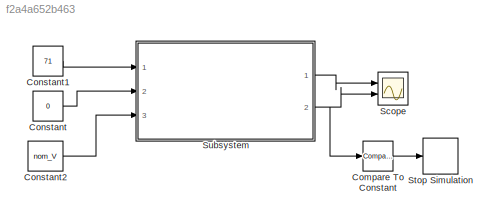
MODEL slx_f2a4a652b463
KIND model
CONFIG AbsTol = auto
CONFIG EnableMultiTasking = off
CONFIG FixedStep = auto
CONFIG MaxStep = auto
CONFIG MinStep = auto
CONFIG RelTol = 1e-3
CONFIG SampleTimeConstraint = Unconstrained
CONFIG Solver = ode23t
CONFIG SolverName = ode23t
CONFIG StartTime = 0.0
CONFIG StopTime = 15000
BLOCK [Reference] Compare To Constant  REF=simulink/Logic and Bit
Operations/Compare
To Constant
  Ports = [1, 1]
  SourceBlock = simulink/Logic and Bit\nOperations/Compare\nTo Constant
  SourceProductBaseCode = SL
  SourceProductName = Simulink
  SourceType = Compare To Constant
BLOCK [Constant] Constant
  Value = 0
BLOCK [Constant] Constant1
  Value = 71
BLOCK [Constant] Constant2
  Value = nom_V
BLOCK [Scope] Scope
  Floating = off
  NumInputPorts = 2
  Ports = [2]
  ScopeSpecificationString = Simulink.scopes.TimeScopeBlockCfg('CurrentConfiguration', extmgr.ConfigurationSet(extmgr.Configuration('Core','General UI',true),extmgr.Configuration('Core','Source UI',true),extmgr.Configuration('Sources','WiredSimulink',true),extmgr.Configuration('Visuals','Time Domain',true,'SerializedDisplays',{struct('MinYLimReal','-18.29','MaxYLimReal','164.61','YLabelReal','','MinYLimMag','0.00000','MaxYLim...<+1339ch>
BLOCK [Stop] Stop Simulation
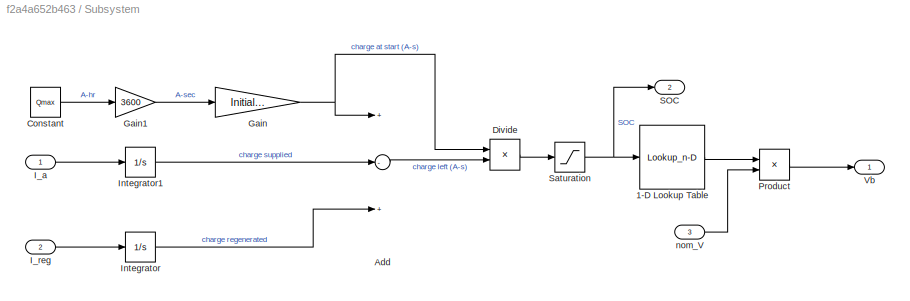
BLOCK [SubSystem] Subsystem
  Ports = [3, 2]
  RequestExecContextInheritance = off
BLOCK [Lookup_n-D] Subsystem/1-D Lookup Table
  BreakpointsForDimension1 = SOC
  InternalRulePriority = Speed
  NumberOfTableDimensions = 1
  Ports = [1, 1]
  RndMeth = Simplest
  Table = normalized_V
BLOCK [Sum] Subsystem/Add
  InputSameDT = off
  Inputs = +-+
  OutDataTypeStr = Inherit: Inherit via internal rule
  Ports = [3, 1]
  SaturateOnIntegerOverflow = off
BLOCK [Constant] Subsystem/Constant
  Value = Qmax
BLOCK [Product] Subsystem/Divide
  InputSameDT = off
  Inputs = /*
  OutDataTypeStr = Inherit: Inherit via internal rule
  Ports = [2, 1]
  RndMeth = Floor
  SaturateOnIntegerOverflow = off
BLOCK [Gain] Subsystem/Gain
  Gain = Initial_SOC
  OutDataTypeStr = Inherit: Inherit via internal rule
  ParamDataTypeStr = Inherit: Inherit via internal rule
  SaturateOnIntegerOverflow = off
BLOCK [Gain] Subsystem/Gain1
  Gain = 3600
  OutDataTypeStr = Inherit: Inherit via internal rule
  ParamDataTypeStr = Inherit: Inherit via internal rule
  SaturateOnIntegerOverflow = off
BLOCK [Inport] Subsystem/I_a
  IconDisplay = Port number
BLOCK [Inport] Subsystem/I_reg
  IconDisplay = Port number
  Port = 2
BLOCK [Integrator] Subsystem/Integrator
  Ports = [1, 1]
BLOCK [Integrator] Subsystem/Integrator1
  Ports = [1, 1]
BLOCK [Product] Subsystem/Product
  InputSameDT = off
  OutDataTypeStr = Inherit: Inherit via internal rule
  Ports = [2, 1]
  RndMeth = Floor
  SaturateOnIntegerOverflow = off
BLOCK [Outport] Subsystem/SOC
  IconDisplay = Port number
  Port = 2
BLOCK [Saturate] Subsystem/Saturation
  InputPortMap = u0
  LowerLimit = 0
  Ports = [1, 1]
  UpperLimit = 1
BLOCK [Outport] Subsystem/Vb
  IconDisplay = Port number
BLOCK [Inport] Subsystem/nom_V
  IconDisplay = Port number
  Port = 3
LINE Compare To Constant:1 -> Stop Simulation:1
LINE Constant1:1 -> Subsystem:1
LINE Constant2:1 -> Subsystem:3
LINE Constant:1 -> Subsystem:2
LINE Subsystem/1-D Lookup Table:1 -> Subsystem/Product:1
LINE Subsystem/Add:1 -> Subsystem/Divide:2
LINE Subsystem/Constant:1 -> Subsystem/Gain1:1
LINE Subsystem/Divide:1 -> Subsystem/Saturation:1
LINE Subsystem/Gain1:1 -> Subsystem/Gain:1
NET Subsystem/Gain:1 -> Subsystem/Add:1, Subsystem/Divide:1
LINE Subsystem/I_a:1 -> Subsystem/Integrator1:1
LINE Subsystem/I_reg:1 -> Subsystem/Integrator:1
LINE Subsystem/Integrator1:1 -> Subsystem/Add:2
LINE Subsystem/Integrator:1 -> Subsystem/Add:3
LINE Subsystem/Product:1 -> Subsystem/Vb:1
NET Subsystem/Saturation:1 -> Subsystem/1-D Lookup Table:1, Subsystem/SOC:1
LINE Subsystem/nom_V:1 -> Subsystem/Product:2
LINE Subsystem:1 -> Scope:1
NET Subsystem:2 -> Compare To Constant:1, Scope:2
note: NET lines group one-source signal fan-out (src -> all destinations, sorted); 1:1 wires keep LINE
